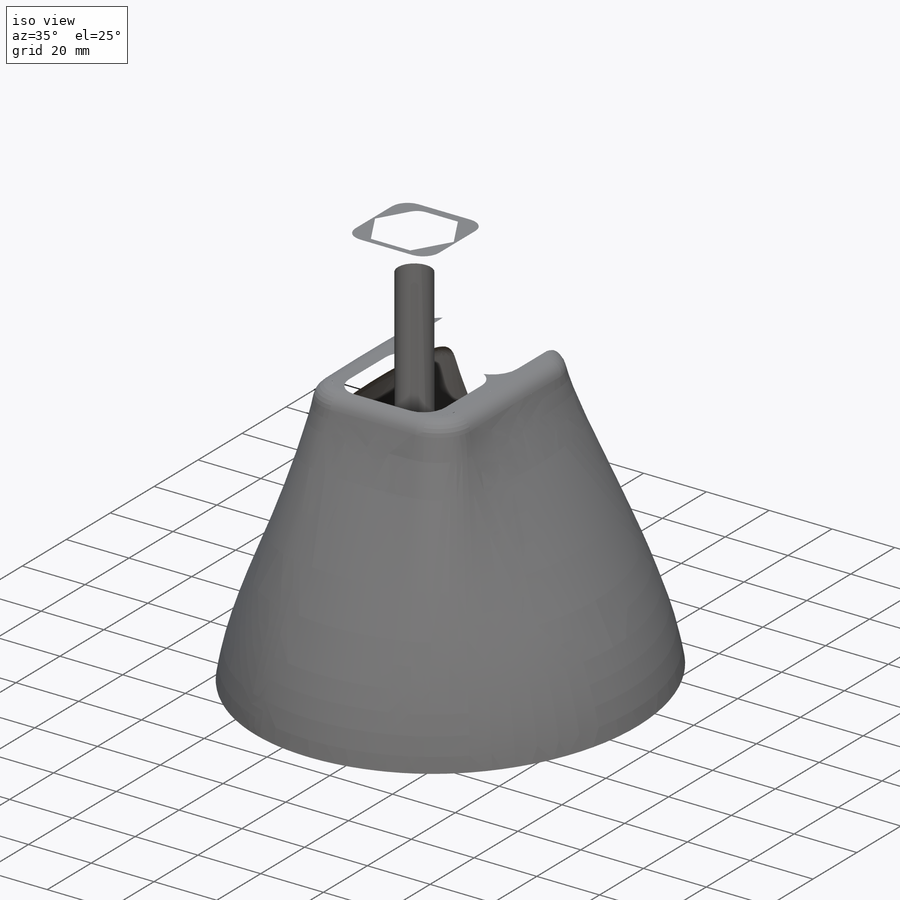
[diagram: iso view]
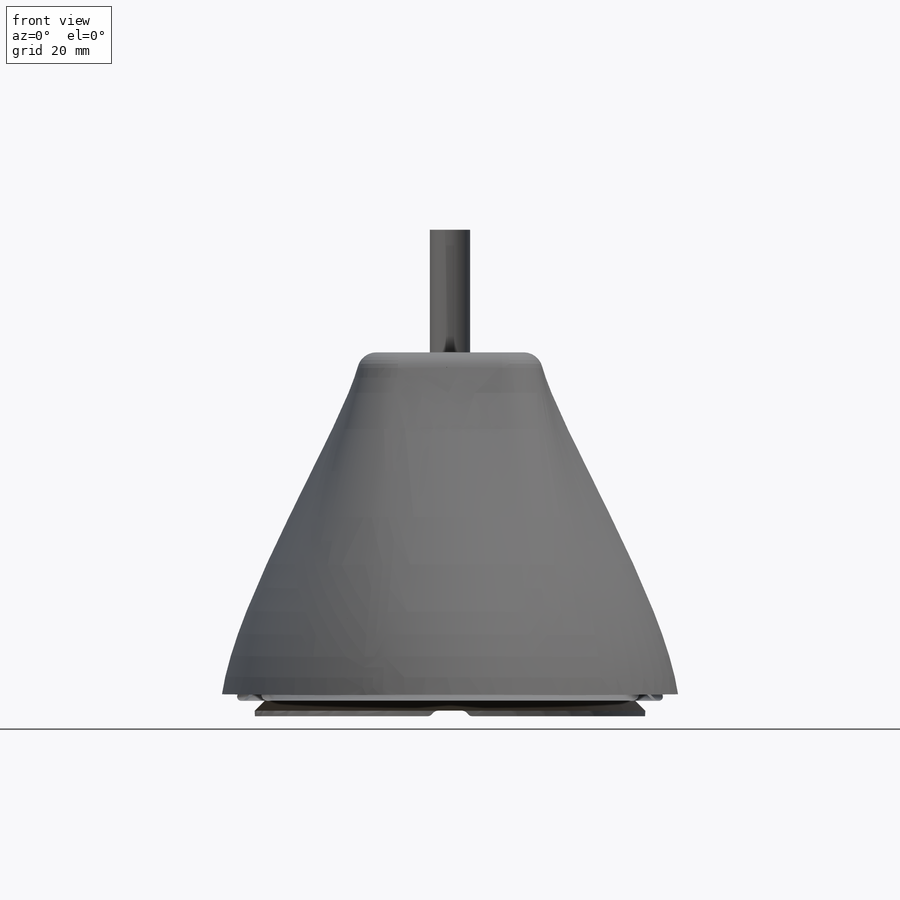
[diagram: front view]
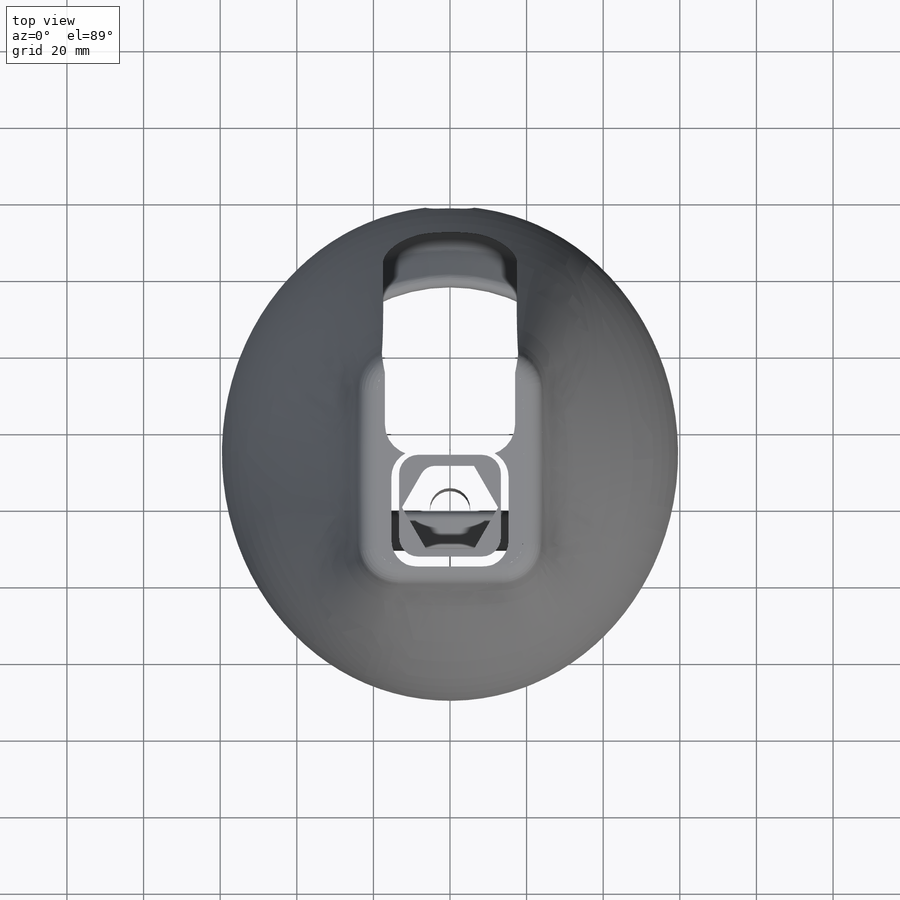
[diagram: top view]
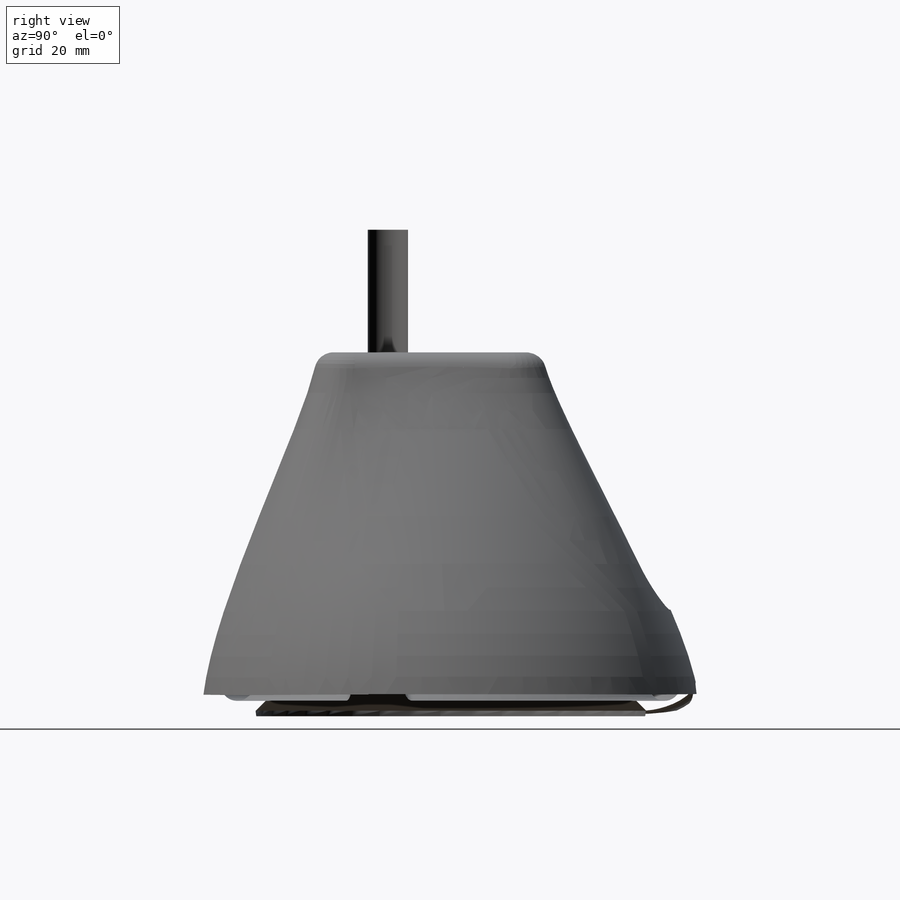
[diagram: right view]
SOLIDWORKS PART (.sldprt)
format: sldprt  version: not decoded by parser v0  size: 2,190,336 bytes
history: native  units: mm
features: sketch x22, fillet x19, cut_extrude x8, plane x7, extrude x3, material x1, cut_revolve x1, shell x1, mirror x1, boolean_combine x1, hole x1, chamfer x1 (+12 scaffold rows collapsed)
feature tree (78):
  scaffold x12  (default folders/planes/origin — collapsed)
  material  "Custom Plastic"
  sketch  "abs_z_motor_dimensions"  dims[c1.D1=~42.132565mm c1.D2=22.0mm c1.D7=~2.972797mm c1.D8=16.0mm c1.D9=2.0mm c1.D10=8.0mm c2.D1=~88.873172mm c2.D2=~79.799035mm c3.D1=12.0mm c3.D3=24.4mm c3.D4=35.6mm c3.D5=33.0mm c3.D6=50.6mm c3.D7=8.0]
  plane  "abs_z_horn_plane"
  plane  "base"  Offset=95mm
  plane  "ground"  Offset=2mm
  sketch  "frontal_box_size"  dims[c1.D1=~92.766659mm c1.D2=~106.059198mm c2.D1=120.0mm]
  sketch  "lateral_box_size"  dims[c1.D1=~96.158151mm c1.D2=~137.23177mm c2.D1=50.0mm c2.D2=80.0mm]
  plane  "abs_z_holes_plane"  Offset=10mm
  sketch  "Sketch11"  dims[c1.D3=10.0mm c1.D1=~65.435804mm c1.D2=~47.946956mm c2.D1=47.0mm c2.D2=60.0mm c2.D4=20.0mm]
  sketch  "Sketch20"
  sketch  "suction_pad_dimensions"  dims[D1=29.0mm D2=3.0mm D3=50.0mm D4=21.0mm D5=13.0mm D6=8.0mm D7=28.0mm]
  plane  "contact_suction_support"
  sketch  "fixation_suction_support"  dims[D3=5.8mm D1=13.0mm D2=22.0mm D4=30.0mm]
  sketch  "nut_dimension"  dims[D1=8.0mm]
  sketch  "Sketch22"  dims[c1.D1=1.0mm c1.D2=1.0mm c1.D3=10.0mm c2.D1=2.0mm]
  cut_revolve  "Cut-Revolve1"  Angle=360deg
  sketch  "Sketch28"  dims[D1=1.0mm]
  cut_extrude  "Cut-Extrude1"  Depth=0.3mm
  shell  "Shell1"  Thickness=4mm
  fillet  "Fillet22"  [1 undecoded]
  fillet  "Fillet23"  Radius=10mm
  fillet  "Fillet10"  Radius=2mm
  sketch  "Sketch29"  dims[c1.D5=10.0mm c1.D2=20.0mm c2.D5=50.0mm c2.D1=~11.880361mm c3.D1=30.0deg c3.D2=2.0mm c3.D3=8.0mm c3.D4=3.0mm c4.D1=16.0mm c4.D2=2.0mm c4.D3=50.0mm c4.D4=29.0mm c5.D2=~14.633578mm c6.D2=30.0deg c7.D2=~13.895087mm c8.D2=35.0deg]
  extrude  "Boss-Extrude1"  Depth=10mm
  plane  "nuts_plane"  Offset=6mm
  sketch  "Sketch34"  dims[D1=0.3mm]
  cut_extrude  "Cut-Extrude3"  [1 undecoded]
  sketch  "Sketch35"
  cut_extrude  "Cut-Extrude4"  [1 undecoded]
  sketch  "Sketch32"  dims[D1=0.0mm]
  extrude  "Boss-Extrude3"  [1 undecoded]
  fillet  "Fillet13"  Radius=10mm
  fillet  "Fillet14"  Radius=20mm
  fillet  "Fillet15"  Radius=2mm
  mirror  "Mirror2"
  boolean_combine  "Combine1"
  fillet  "Fillet24"  Radius=2mm
  fillet  "Fillet11"  Radius=3mm
  fillet  "Fillet16"  Radius=3mm
  fillet  "Fillet17"  Radius=5mm
  sketch  "Sketch33"  dims[c1.D1=75.0mm c1.D2=7.0mm c1.D3=75.0mm c2.D3=90.0deg]
  cut_extrude  "Cut-Extrude2"  Depth=30mm
  fillet  "Fillet18"  Radius=6mm
  sketch  "Sketch10"  dims[D1=0.3mm]
  hole  "CBORE for M2 Hex Socket Head Cap Screw1"  Diameter=2.2mm Depth=10.301418mm
  sketch  "Sketch9"
  sketch  "Sketch8"  dims[hole-wizard template sketch: 42 standard entries collapsed; hole parameters kept: c12.Thru Hole Depth=~10.301418mm c12.C'Bore Dia.=4.4mm c12.C'Bore Depth=8.7mm c12.Mid C'Sink Dia.=2.25mm c12.D6=~5.388154mm c12.Mid C'Sink Angle=90.0deg]
  cut_extrude  "Cut-Extrude5"  [1 undecoded]
  chamfer  "Chamfer1"  Distance=0.5mm Angle=45deg
  fillet  "Fillet26"  Radius=2mm
  fillet  "Fillet28"  Radius=0.5mm
  sketch  "Sketch36"
  cut_extrude  "Cut-Extrude6"  Depth=10mm
  fillet  "Fillet30"  Radius=2mm
  fillet  "Fillet32"  Radius=2mm
  fillet  "Fillet34"  Radius=1.5mm
  sketch  "Croquis1"  dims[D1=~26.588409mm]
  extrude  "Saliente-Extruir1"  Depth=44mm
  sketch  "Croquis2"  dims[D1=10.5mm]
  cut_extrude  "Cortar-Extruir1"  Depth=28mm
  plane  "Plano1"
  sketch  "Croquis6"  dims[D1=17.72mm]
  cut_extrude  "Cortar-Extruir2"  Depth=12mm
  fillet  "Redondeo2"  Radius=5mm
  fillet  "Redondeo3"  Radius=2mm
  fillet  "Redondeo9"  Radius=2mm
decode coverage: 47 of 58 modeling features carry decoded parameters
note: ~ marks probable driven/reference dimensions
note: 5 parameter values undecoded
summary: no parameter record found for 5 features
note: suppression state not decoded; provenance and decode notes live in map.json
